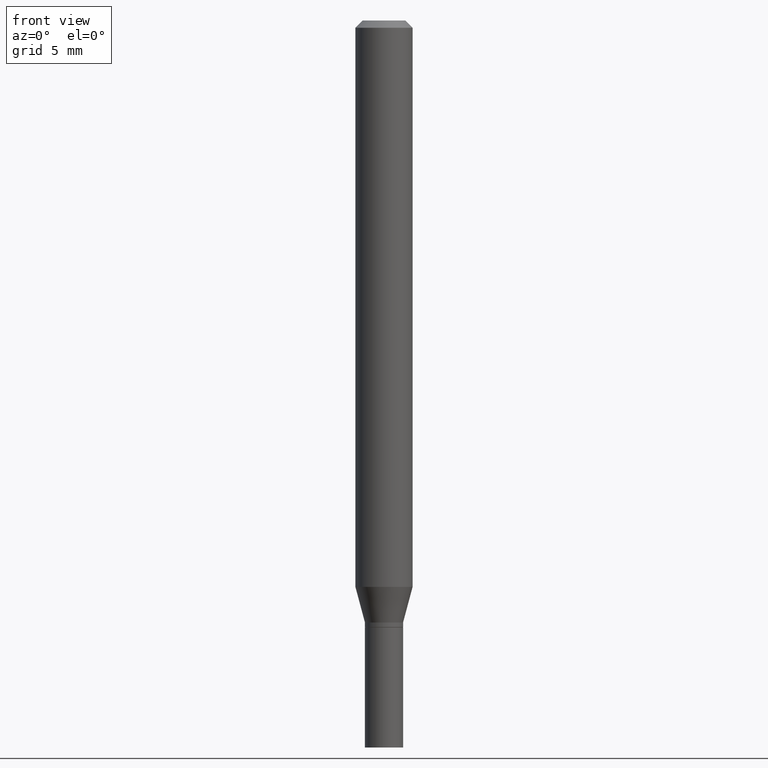
[diagram: clean part render]
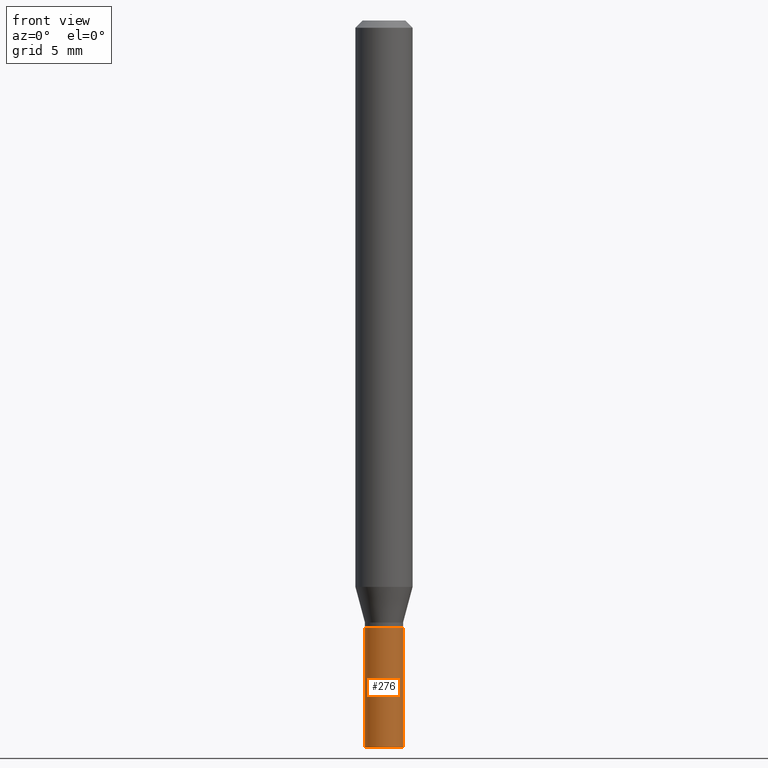
[diagram: same view with one face highlighted and labeled with its STEP entity id]
A machine part, front view. The second image highlights one B-rep face of the part: STEP entity #276.
In plain terms, the highlighted cylindrical surface (edge-blend (fillet) strip) has radius 0.9995 mm, axis along (-0, 0, 1).
Its self-contained STEP definition (entity closure, byte-faithful):
#31 = CARTESIAN_POINT ( 'NONE',  ( -0.03935000000000000303, -4.524679755726570119E-15, -1.252000000000000224 ) ) ;
#40 = VERTEX_POINT ( 'NONE', #453 ) ;
#41 = EDGE_CURVE ( 'NONE', #328, #170, #119, .T. ) ;
#51 = FACE_OUTER_BOUND ( 'NONE', #406, .T. ) ;
#69 = VERTEX_POINT ( 'NONE', #31 ) ;
#92 = ORIENTED_EDGE ( 'NONE', *, *, #204, .F. ) ;
#97 = CARTESIAN_POINT ( 'NONE',  ( 0.03935000000000000303, -5.512001589631673094E-15, -1.500000000000000222 ) ) ;
#117 = CARTESIAN_POINT ( 'NONE',  ( 3.668203209277704895E-29, -5.237222008264718177E-15, -1.500000000000000222 ) ) ;
#119 = CIRCLE ( 'NONE', #405, 0.03935000000000000303 ) ;
#120 = AXIS2_PLACEMENT_3D ( 'NONE', #194, #339, #187 ) ;
#123 = DIRECTION ( 'NONE',  ( -2.445468806185136877E-29, 3.491481338843145188E-15, 1.000000000000000000 ) ) ;
#149 = AXIS2_PLACEMENT_3D ( 'NONE', #233, #310, #377 ) ;
#156 = LINE ( 'NONE', #451, #217 ) ;
#159 = DIRECTION ( 'NONE',  ( 1.000000000000000000, -6.982962677686269077E-15, 0.000000000000000000 ) ) ;
#170 = VERTEX_POINT ( 'NONE', #97 ) ;
#187 = DIRECTION ( 'NONE',  ( 1.000000000000000000, -6.982962677686266711E-15, 4.876176775795936353E-29 ) ) ;
#194 = CARTESIAN_POINT ( 'NONE',  ( 0.000000000000000000, 0.000000000000000000, 0.000000000000000000 ) ) ;
#204 = EDGE_CURVE ( 'NONE', #69, #40, #331, .T. ) ;
#217 = VECTOR ( 'NONE', #123, 39.37007874015748143 ) ;
#229 = CYLINDRICAL_SURFACE ( 'NONE', #120, 0.03935000000000000303 ) ;
#233 = CARTESIAN_POINT ( 'NONE',  ( 3.061726945343791391E-29, -4.371334636231619274E-15, -1.252000000000000224 ) ) ;
#247 = DIRECTION ( 'NONE',  ( -2.445468806185136877E-29, 3.491481338843145188E-15, 1.000000000000000000 ) ) ;
#248 = ORIENTED_EDGE ( 'NONE', *, *, #41, .T. ) ;
#257 = EDGE_CURVE ( 'NONE', #328, #69, #353, .T. ) ;
#274 = EDGE_CURVE ( 'NONE', #170, #40, #156, .T. ) ;
#276 = ADVANCED_FACE ( 'NONE', ( #51 ), #229, .T. ) ;
#281 = ORIENTED_EDGE ( 'NONE', *, *, #257, .F. ) ;
#298 = DIRECTION ( 'NONE',  ( -2.445468806185136597E-29, 3.491481338843145583E-15, 1.000000000000000000 ) ) ;
#310 = DIRECTION ( 'NONE',  ( -2.445468806185136597E-29, 3.491481338843145583E-15, 1.000000000000000000 ) ) ;
#328 = VERTEX_POINT ( 'NONE', #396 ) ;
#331 = CIRCLE ( 'NONE', #149, 0.03935000000000000303 ) ;
#339 = DIRECTION ( 'NONE',  ( -2.445468806185136597E-29, 3.491481338843145583E-15, 1.000000000000000000 ) ) ;
#353 = LINE ( 'NONE', #425, #458 ) ;
#377 = DIRECTION ( 'NONE',  ( 1.000000000000000000, -6.982962677686269077E-15, 0.000000000000000000 ) ) ;
#396 = CARTESIAN_POINT ( 'NONE',  ( -0.03935000000000000303, -4.524679755726570119E-15, -1.500000000000000222 ) ) ;
#405 = AXIS2_PLACEMENT_3D ( 'NONE', #117, #298, #159 ) ;
#406 = EDGE_LOOP ( 'NONE', ( #281, #248, #421, #92 ) ) ;
#421 = ORIENTED_EDGE ( 'NONE', *, *, #274, .T. ) ;
#425 = CARTESIAN_POINT ( 'NONE',  ( -0.03935000000000000303, 2.795985665215994447E-16, -1.935600958015305291E-30 ) ) ;
#451 = CARTESIAN_POINT ( 'NONE',  ( 0.03935000000000000303, -2.747795813669546211E-16, 1.918775561275701074E-30 ) ) ;
#453 = CARTESIAN_POINT ( 'NONE',  ( 0.03935000000000000303, -4.646114217598574191E-15, -1.252000000000000224 ) ) ;
#458 = VECTOR ( 'NONE', #247, 39.37007874015748143 ) ;